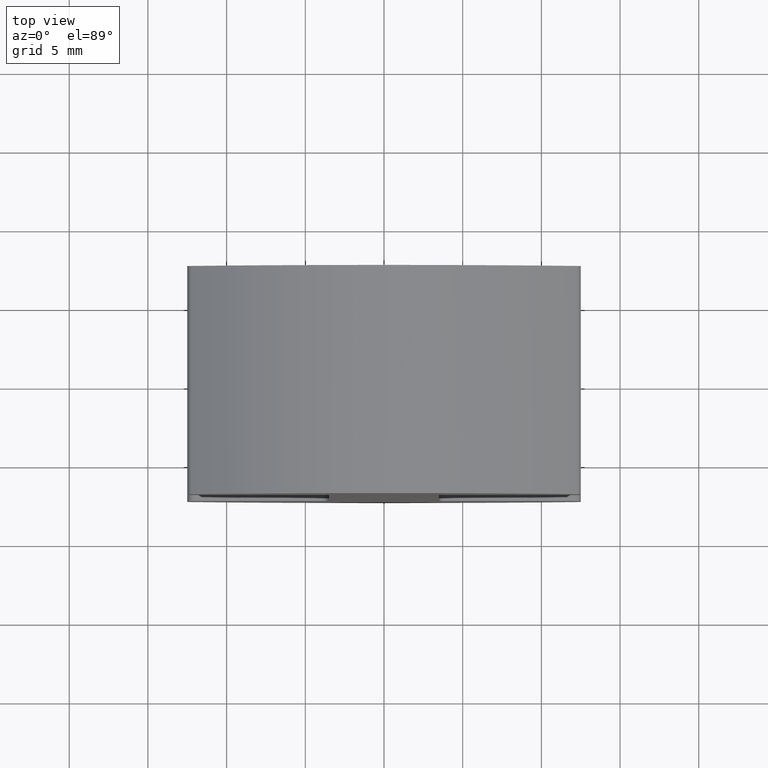
[diagram: clean part render]
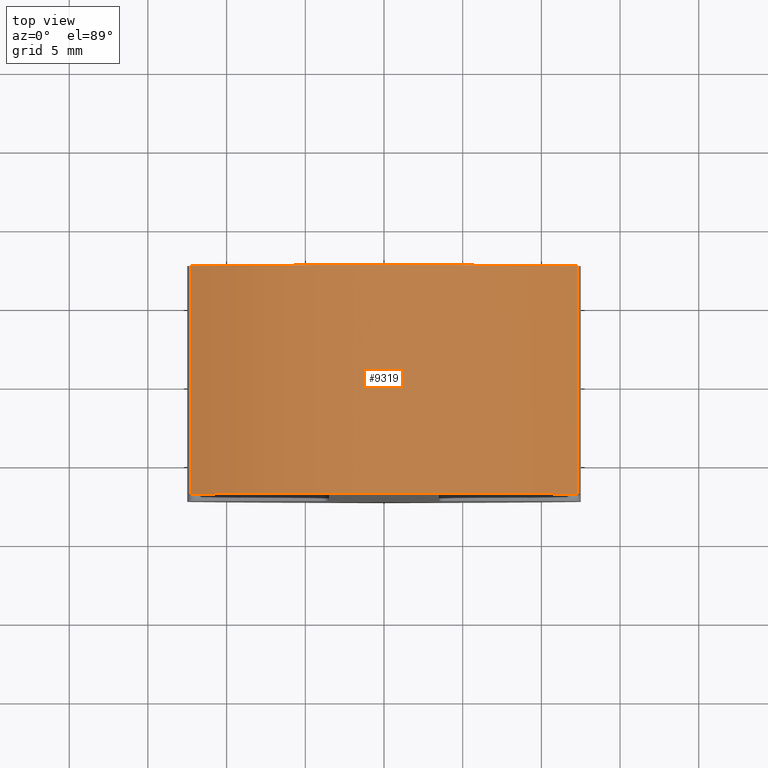
[diagram: same view with one face highlighted and labeled with its STEP entity id]
A machine part, top view. The second image highlights one B-rep face of the part: STEP entity #9319.
In plain terms, the highlighted cylindrical surface (partial cylindrical patch) has radius 22 mm, axis along (-0, -1, -0).
Its self-contained STEP definition (entity closure, byte-faithful):
#505 = DIRECTION ( 'NONE',  ( 0.0000000000000000000, 1.000000000000000000, 0.0000000000000000000 ) ) ;
#914 = AXIS2_PLACEMENT_3D ( 'NONE', #9629, #7672, #3715 ) ;
#1256 = CIRCLE ( 'NONE', #7587, 22.00000000000000000 ) ;
#2825 = VECTOR ( 'NONE', #6059, 1000.000000000000000 ) ;
#2826 = CARTESIAN_POINT ( 'NONE',  ( 12.27906976744186300, -7.250000000000000000, 14.45056933758451100 ) ) ;
#2888 = CARTESIAN_POINT ( 'NONE',  ( -12.27906976744186300, -7.250000000000000000, 14.45056933758451100 ) ) ;
#2980 = FACE_OUTER_BOUND ( 'NONE', #8926, .T. ) ;
#3418 = ORIENTED_EDGE ( 'NONE', *, *, #8010, .T. ) ;
#3599 = LINE ( 'NONE', #4533, #8978 ) ;
#3715 = DIRECTION ( 'NONE',  ( 0.0000000000000000000, 0.0000000000000000000, -1.000000000000000000 ) ) ;
#3832 = CARTESIAN_POINT ( 'NONE',  ( 4.747783872879899400E-063, 7.250000000000000000, -3.803866990231672000 ) ) ;
#4098 = EDGE_CURVE ( 'NONE', #9107, #9519, #10874, .T. ) ;
#4519 = CYLINDRICAL_SURFACE ( 'NONE', #914, 22.00000000000000000 ) ;
#4533 = CARTESIAN_POINT ( 'NONE',  ( -12.27906976744186100, 7.250000000000000000, 14.45056933758451100 ) ) ;
#4583 = CARTESIAN_POINT ( 'NONE',  ( 4.747783872879899400E-063, -7.250000000000000000, -3.803866990231672000 ) ) ;
#4669 = VERTEX_POINT ( 'NONE', #2888 ) ;
#6059 = DIRECTION ( 'NONE',  ( 0.0000000000000000000, 1.000000000000000000, 0.0000000000000000000 ) ) ;
#6111 = CARTESIAN_POINT ( 'NONE',  ( 12.27906976744186100, 7.250000000000000000, 14.45056933758451100 ) ) ;
#6139 = VERTEX_POINT ( 'NONE', #2826 ) ;
#6573 = DIRECTION ( 'NONE',  ( -0.0000000000000000000, -1.000000000000000000, -0.0000000000000000000 ) ) ;
#6903 = ORIENTED_EDGE ( 'NONE', *, *, #8618, .T. ) ;
#7587 = AXIS2_PLACEMENT_3D ( 'NONE', #4583, #505, #8717 ) ;
#7672 = DIRECTION ( 'NONE',  ( -0.0000000000000000000, -1.000000000000000000, -0.0000000000000000000 ) ) ;
#8010 = EDGE_CURVE ( 'NONE', #4669, #6139, #1256, .T. ) ;
#8199 = LINE ( 'NONE', #6111, #2825 ) ;
#8416 = EDGE_CURVE ( 'NONE', #9107, #4669, #3599, .T. ) ;
#8618 = EDGE_CURVE ( 'NONE', #6139, #9519, #8199, .T. ) ;
#8717 = DIRECTION ( 'NONE',  ( 0.0000000000000000000, 0.0000000000000000000, 1.000000000000000000 ) ) ;
#8877 = ORIENTED_EDGE ( 'NONE', *, *, #8416, .T. ) ;
#8926 = EDGE_LOOP ( 'NONE', ( #10307, #8877, #3418, #6903 ) ) ;
#8978 = VECTOR ( 'NONE', #6573, 1000.000000000000000 ) ;
#9107 = VERTEX_POINT ( 'NONE', #10255 ) ;
#9246 = AXIS2_PLACEMENT_3D ( 'NONE', #3832, #10959, #11973 ) ;
#9319 = ADVANCED_FACE ( 'NONE', ( #2980 ), #4519, .T. ) ;
#9519 = VERTEX_POINT ( 'NONE', #11453 ) ;
#9629 = CARTESIAN_POINT ( 'NONE',  ( 4.747783872879899400E-063, 7.250000000000000000, -3.803866990231672000 ) ) ;
#10255 = CARTESIAN_POINT ( 'NONE',  ( -12.27906976744186300, 7.250000000000000000, 14.45056933758451100 ) ) ;
#10307 = ORIENTED_EDGE ( 'NONE', *, *, #4098, .F. ) ;
#10874 = CIRCLE ( 'NONE', #9246, 22.00000000000000000 ) ;
#10959 = DIRECTION ( 'NONE',  ( 0.0000000000000000000, 1.000000000000000000, 0.0000000000000000000 ) ) ;
#11453 = CARTESIAN_POINT ( 'NONE',  ( 12.27906976744186300, 7.250000000000000000, 14.45056933758451100 ) ) ;
#11973 = DIRECTION ( 'NONE',  ( 0.0000000000000000000, 0.0000000000000000000, 1.000000000000000000 ) ) ;